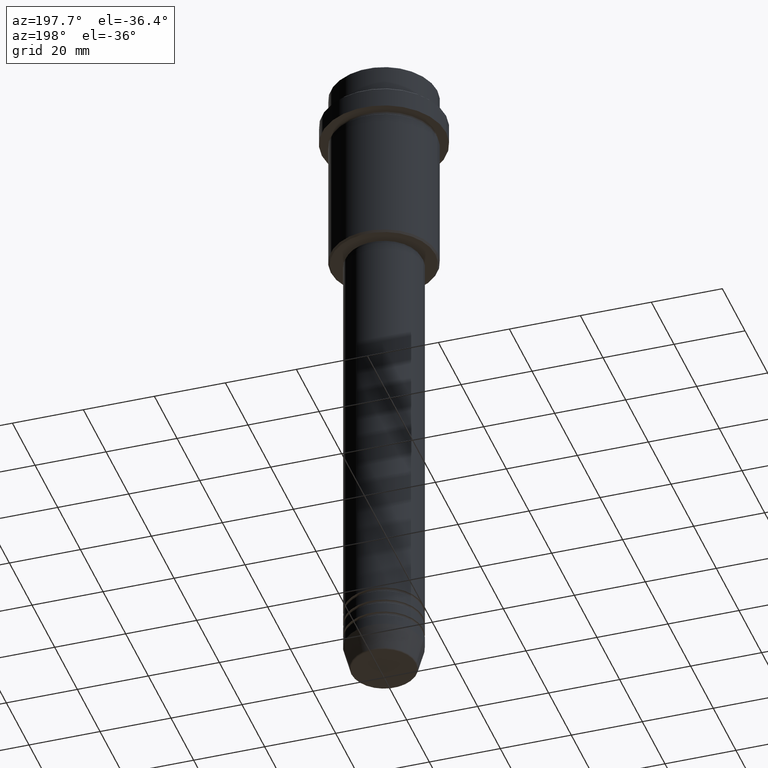
[diagram: clean part render]
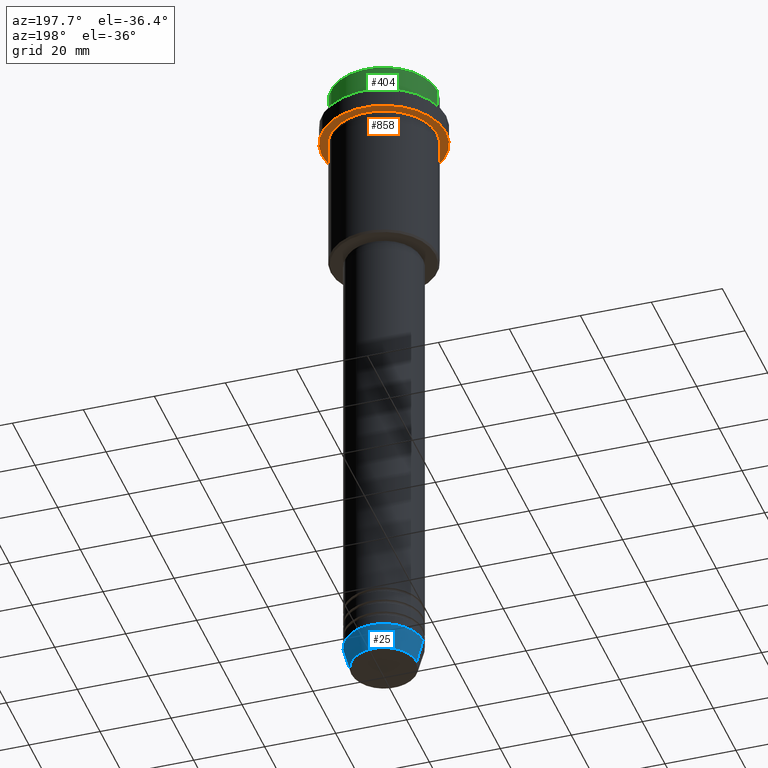
[diagram: same view with three faces highlighted in distinct colors, each labeled with its STEP entity id]
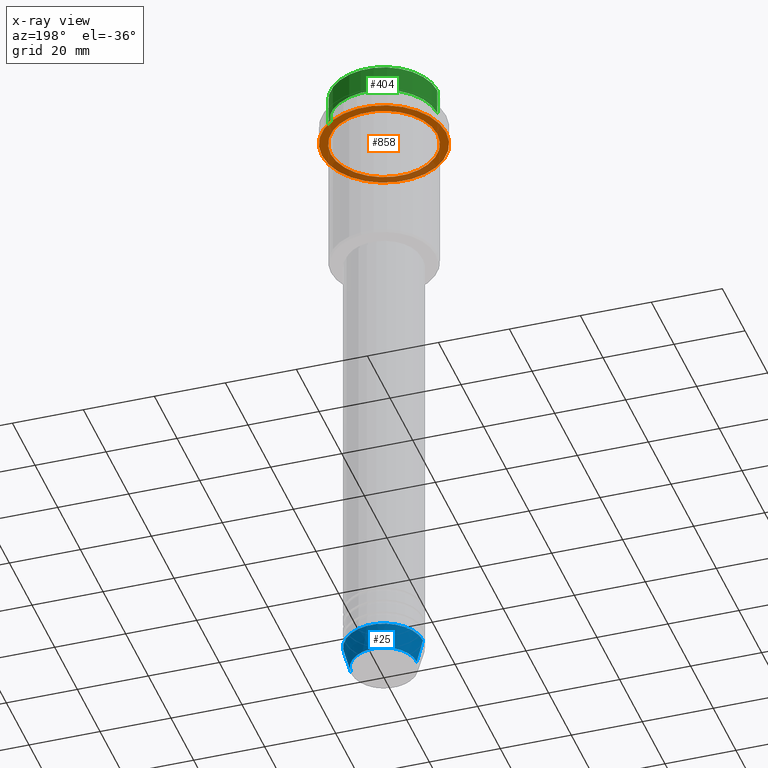
[diagram: x-ray of the same camera — body ghosted, the three highlighted faces saturated]
A machine part, auxiliary view with three faces highlighted in distinct colors.
The next image is the same camera in x-ray (body ghosted, the three faces saturated) — at least one of them is partly hidden behind the body in this view.
Their STEP definitions:

[orange] entity #858 — the highlighted planar face has unit normal (0, 0, -1).
#10 = EDGE_LOOP ( 'NONE', ( #774, #285 ) ) ;
#23 = DIRECTION ( 'NONE',  ( -0.000000000000000000, -0.000000000000000000, 1.000000000000000000 ) ) ;
#29 = CARTESIAN_POINT ( 'NONE',  ( -14.99999999999999645, 0.000000000000000000, -15.00000000000000000 ) ) ;
#38 = DIRECTION ( 'NONE',  ( 0.000000000000000000, 0.000000000000000000, -1.000000000000000000 ) ) ;
#86 = ORIENTED_EDGE ( 'NONE', *, *, #1086, .F. ) ;
#112 = VERTEX_POINT ( 'NONE', #522 ) ;
#129 = AXIS2_PLACEMENT_3D ( 'NONE', #1008, #23, #1326 ) ;
#149 = DIRECTION ( 'NONE',  ( 1.000000000000000000, 0.000000000000000000, 0.000000000000000000 ) ) ;
#157 = FACE_BOUND ( 'NONE', #10, .T. ) ;
#224 = AXIS2_PLACEMENT_3D ( 'NONE', #580, #38, #886 ) ;
#234 = ORIENTED_EDGE ( 'NONE', *, *, #816, .F. ) ;
#267 = CARTESIAN_POINT ( 'NONE',  ( 17.50000000000000000, 0.000000000000000000, -15.00000000000000178 ) ) ;
#285 = ORIENTED_EDGE ( 'NONE', *, *, #364, .T. ) ;
#363 = FACE_OUTER_BOUND ( 'NONE', #579, .T. ) ;
#364 = EDGE_CURVE ( 'NONE', #758, #1271, #549, .T. ) ;
#435 = AXIS2_PLACEMENT_3D ( 'NONE', #1197, #652, #535 ) ;
#440 = CARTESIAN_POINT ( 'NONE',  ( 0.000000000000000000, 0.000000000000000000, -15.00000000000000000 ) ) ;
#446 = DIRECTION ( 'NONE',  ( -1.000000000000000000, 0.000000000000000000, 0.000000000000000000 ) ) ;
#522 = CARTESIAN_POINT ( 'NONE',  ( -17.50000000000000000, 2.143131898507868248E-15, -15.00000000000000178 ) ) ;
#535 = DIRECTION ( 'NONE',  ( 1.000000000000000000, 0.000000000000000000, 0.000000000000000000 ) ) ;
#549 = CIRCLE ( 'NONE', #129, 14.99999999999999645 ) ;
#579 = EDGE_LOOP ( 'NONE', ( #234, #86 ) ) ;
#580 = CARTESIAN_POINT ( 'NONE',  ( 0.000000000000000000, 17.50000000000000000, -15.00000000000000000 ) ) ;
#604 = DIRECTION ( 'NONE',  ( -0.000000000000000000, -0.000000000000000000, 1.000000000000000000 ) ) ;
#652 = DIRECTION ( 'NONE',  ( -0.000000000000000000, -0.000000000000000000, 1.000000000000000000 ) ) ;
#709 = AXIS2_PLACEMENT_3D ( 'NONE', #440, #851, #446 ) ;
#758 = VERTEX_POINT ( 'NONE', #1063 ) ;
#774 = ORIENTED_EDGE ( 'NONE', *, *, #1125, .T. ) ;
#816 = EDGE_CURVE ( 'NONE', #1312, #112, #838, .T. ) ;
#838 = CIRCLE ( 'NONE', #1398, 17.50000000000000000 ) ;
#851 = DIRECTION ( 'NONE',  ( -0.000000000000000000, -0.000000000000000000, 1.000000000000000000 ) ) ;
#858 = ADVANCED_FACE ( 'NONE', ( #157, #363 ), #1115, .T. ) ;
#886 = DIRECTION ( 'NONE',  ( -1.000000000000000000, 0.000000000000000000, -0.000000000000000000 ) ) ;
#1008 = CARTESIAN_POINT ( 'NONE',  ( 0.000000000000000000, 0.000000000000000000, -15.00000000000000000 ) ) ;
#1022 = CARTESIAN_POINT ( 'NONE',  ( 0.000000000000000000, 0.000000000000000000, -15.00000000000000178 ) ) ;
#1063 = CARTESIAN_POINT ( 'NONE',  ( 14.99999999999999645, 1.836970198721029194E-15, -15.00000000000000000 ) ) ;
#1086 = EDGE_CURVE ( 'NONE', #112, #1312, #1207, .T. ) ;
#1115 = PLANE ( 'NONE',  #224 ) ;
#1125 = EDGE_CURVE ( 'NONE', #1271, #758, #1311, .T. ) ;
#1197 = CARTESIAN_POINT ( 'NONE',  ( 0.000000000000000000, 0.000000000000000000, -15.00000000000000178 ) ) ;
#1207 = CIRCLE ( 'NONE', #435, 17.50000000000000000 ) ;
#1271 = VERTEX_POINT ( 'NONE', #29 ) ;
#1311 = CIRCLE ( 'NONE', #709, 14.99999999999999645 ) ;
#1312 = VERTEX_POINT ( 'NONE', #267 ) ;
#1326 = DIRECTION ( 'NONE',  ( -1.000000000000000000, 0.000000000000000000, 0.000000000000000000 ) ) ;
#1398 = AXIS2_PLACEMENT_3D ( 'NONE', #1022, #604, #149 ) ;

[blue] entity #25 — the highlighted conical surface has half-angle 15 deg.
#25 = ADVANCED_FACE ( 'NONE', ( #607 ), #76, .T. ) ;
#60 = CARTESIAN_POINT ( 'NONE',  ( -11.00000000000000000, 1.347111479062088405E-15, -183.0000000000000000 ) ) ;
#76 = CONICAL_SURFACE ( 'NONE', #474, 11.00000000000000000, 0.2617993877991500740 ) ;
#95 = EDGE_LOOP ( 'NONE', ( #1316, #1039, #1112, #603 ) ) ;
#132 = VECTOR ( 'NONE', #1170, 1000.000000000000000 ) ;
#138 = CARTESIAN_POINT ( 'NONE',  ( -11.00000000000000000, 1.347111479062088405E-15, -183.0000000000000000 ) ) ;
#158 = DIRECTION ( 'NONE',  ( -0.2588190451025213501, 3.169619151431772337E-17, 0.9659258262890680902 ) ) ;
#159 = DIRECTION ( 'NONE',  ( 1.000000000000000000, 0.000000000000000000, 0.000000000000000000 ) ) ;
#189 = DIRECTION ( 'NONE',  ( -0.000000000000000000, -0.000000000000000000, 1.000000000000000000 ) ) ;
#342 = EDGE_CURVE ( 'NONE', #1067, #930, #1242, .T. ) ;
#350 = DIRECTION ( 'NONE',  ( -0.000000000000000000, -0.000000000000000000, 1.000000000000000000 ) ) ;
#359 = EDGE_CURVE ( 'NONE', #930, #1386, #606, .T. ) ;
#365 = AXIS2_PLACEMENT_3D ( 'NONE', #451, #350, #1309 ) ;
#411 = VECTOR ( 'NONE', #158, 1000.000000000000000 ) ;
#427 = CARTESIAN_POINT ( 'NONE',  ( 11.00000000000000000, 0.000000000000000000, -183.0000000000000000 ) ) ;
#451 = CARTESIAN_POINT ( 'NONE',  ( 0.000000000000000000, 0.000000000000000000, -189.6294095225512422 ) ) ;
#474 = AXIS2_PLACEMENT_3D ( 'NONE', #1347, #898, #159 ) ;
#476 = CARTESIAN_POINT ( 'NONE',  ( -9.223655072137189492, 1.238341722557647202E-15, -189.6294095225512422 ) ) ;
#508 = EDGE_CURVE ( 'NONE', #915, #1386, #1169, .T. ) ;
#509 = DIRECTION ( 'NONE',  ( 1.000000000000000000, 0.000000000000000000, 0.000000000000000000 ) ) ;
#566 = LINE ( 'NONE', #427, #132 ) ;
#603 = ORIENTED_EDGE ( 'NONE', *, *, #613, .F. ) ;
#606 = LINE ( 'NONE', #138, #411 ) ;
#607 = FACE_OUTER_BOUND ( 'NONE', #95, .T. ) ;
#613 = EDGE_CURVE ( 'NONE', #1067, #915, #566, .T. ) ;
#690 = CARTESIAN_POINT ( 'NONE',  ( 11.00000000000000000, 0.000000000000000000, -183.0000000000000000 ) ) ;
#754 = AXIS2_PLACEMENT_3D ( 'NONE', #837, #189, #509 ) ;
#822 = CARTESIAN_POINT ( 'NONE',  ( 9.223655072137189492, 0.000000000000000000, -189.6294095225512422 ) ) ;
#837 = CARTESIAN_POINT ( 'NONE',  ( 0.000000000000000000, 0.000000000000000000, -183.0000000000000000 ) ) ;
#898 = DIRECTION ( 'NONE',  ( -0.000000000000000000, -0.000000000000000000, 1.000000000000000000 ) ) ;
#915 = VERTEX_POINT ( 'NONE', #690 ) ;
#930 = VERTEX_POINT ( 'NONE', #476 ) ;
#1039 = ORIENTED_EDGE ( 'NONE', *, *, #359, .T. ) ;
#1067 = VERTEX_POINT ( 'NONE', #822 ) ;
#1112 = ORIENTED_EDGE ( 'NONE', *, *, #508, .F. ) ;
#1169 = CIRCLE ( 'NONE', #754, 11.00000000000000000 ) ;
#1170 = DIRECTION ( 'NONE',  ( 0.2588190451025213501, 0.000000000000000000, 0.9659258262890680902 ) ) ;
#1242 = CIRCLE ( 'NONE', #365, 9.223655072137189492 ) ;
#1309 = DIRECTION ( 'NONE',  ( 1.000000000000000000, 0.000000000000000000, 0.000000000000000000 ) ) ;
#1316 = ORIENTED_EDGE ( 'NONE', *, *, #342, .T. ) ;
#1347 = CARTESIAN_POINT ( 'NONE',  ( 0.000000000000000000, 0.000000000000000000, -183.0000000000000000 ) ) ;
#1386 = VERTEX_POINT ( 'NONE', #60 ) ;

[green] entity #404 — the highlighted cylindrical surface (partial cylindrical patch) has radius 15 mm, axis along (-0, -0, 1).
#11 = CARTESIAN_POINT ( 'NONE',  ( -15.00000000000000000, 1.836970198721029589E-15, 0.000000000000000000 ) ) ;
#71 = EDGE_CURVE ( 'NONE', #673, #1210, #792, .T. ) ;
#176 = AXIS2_PLACEMENT_3D ( 'NONE', #1282, #956, #853 ) ;
#199 = CIRCLE ( 'NONE', #274, 15.00000000000000000 ) ;
#274 = AXIS2_PLACEMENT_3D ( 'NONE', #955, #619, #520 ) ;
#292 = VERTEX_POINT ( 'NONE', #888 ) ;
#323 = AXIS2_PLACEMENT_3D ( 'NONE', #687, #1106, #1001 ) ;
#404 = ADVANCED_FACE ( 'NONE', ( #478 ), #905, .T. ) ;
#441 = CARTESIAN_POINT ( 'NONE',  ( -15.00000000000000000, 1.836970198721029589E-15, -0.4999999999999831246 ) ) ;
#462 = EDGE_CURVE ( 'NONE', #1210, #631, #578, .T. ) ;
#464 = DIRECTION ( 'NONE',  ( -0.000000000000000000, -0.000000000000000000, 1.000000000000000000 ) ) ;
#478 = FACE_OUTER_BOUND ( 'NONE', #982, .T. ) ;
#489 = EDGE_CURVE ( 'NONE', #631, #292, #199, .T. ) ;
#520 = DIRECTION ( 'NONE',  ( 1.000000000000000000, 0.000000000000000000, 0.000000000000000000 ) ) ;
#578 = LINE ( 'NONE', #11, #1371 ) ;
#619 = DIRECTION ( 'NONE',  ( 0.000000000000000000, 0.000000000000000000, -1.000000000000000000 ) ) ;
#631 = VERTEX_POINT ( 'NONE', #441 ) ;
#673 = VERTEX_POINT ( 'NONE', #770 ) ;
#684 = VECTOR ( 'NONE', #1389, 1000.000000000000000 ) ;
#687 = CARTESIAN_POINT ( 'NONE',  ( 0.000000000000000000, 0.000000000000000000, 0.000000000000000000 ) ) ;
#703 = ORIENTED_EDGE ( 'NONE', *, *, #462, .T. ) ;
#747 = LINE ( 'NONE', #959, #684 ) ;
#764 = CARTESIAN_POINT ( 'NONE',  ( -15.00000000000000000, 1.836970198721029589E-15, -7.999999999999998224 ) ) ;
#770 = CARTESIAN_POINT ( 'NONE',  ( 15.00000000000000000, 0.000000000000000000, -7.999999999999998224 ) ) ;
#792 = CIRCLE ( 'NONE', #176, 15.00000000000000000 ) ;
#853 = DIRECTION ( 'NONE',  ( 1.000000000000000000, 0.000000000000000000, 0.000000000000000000 ) ) ;
#888 = CARTESIAN_POINT ( 'NONE',  ( 15.00000000000000000, 0.000000000000000000, -0.4999999999999831246 ) ) ;
#905 = CYLINDRICAL_SURFACE ( 'NONE', #323, 15.00000000000000000 ) ;
#955 = CARTESIAN_POINT ( 'NONE',  ( 0.000000000000000000, 0.000000000000000000, -0.4999999999999831246 ) ) ;
#956 = DIRECTION ( 'NONE',  ( -0.000000000000000000, -0.000000000000000000, 1.000000000000000000 ) ) ;
#959 = CARTESIAN_POINT ( 'NONE',  ( 15.00000000000000000, 0.000000000000000000, 0.000000000000000000 ) ) ;
#982 = EDGE_LOOP ( 'NONE', ( #1236, #703, #1160, #1088 ) ) ;
#1001 = DIRECTION ( 'NONE',  ( 1.000000000000000000, 0.000000000000000000, 0.000000000000000000 ) ) ;
#1088 = ORIENTED_EDGE ( 'NONE', *, *, #1198, .F. ) ;
#1106 = DIRECTION ( 'NONE',  ( -0.000000000000000000, -0.000000000000000000, 1.000000000000000000 ) ) ;
#1160 = ORIENTED_EDGE ( 'NONE', *, *, #489, .T. ) ;
#1198 = EDGE_CURVE ( 'NONE', #673, #292, #747, .T. ) ;
#1210 = VERTEX_POINT ( 'NONE', #764 ) ;
#1236 = ORIENTED_EDGE ( 'NONE', *, *, #71, .T. ) ;
#1282 = CARTESIAN_POINT ( 'NONE',  ( 0.000000000000000000, 0.000000000000000000, -7.999999999999998224 ) ) ;
#1371 = VECTOR ( 'NONE', #464, 1000.000000000000000 ) ;
#1389 = DIRECTION ( 'NONE',  ( -0.000000000000000000, -0.000000000000000000, 1.000000000000000000 ) ) ;